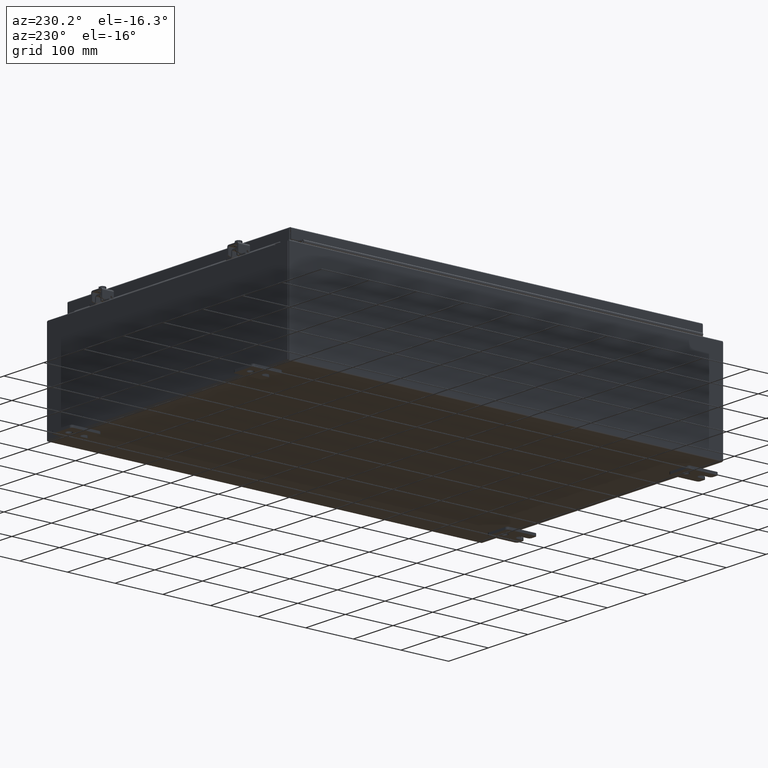
[diagram: clean part render]
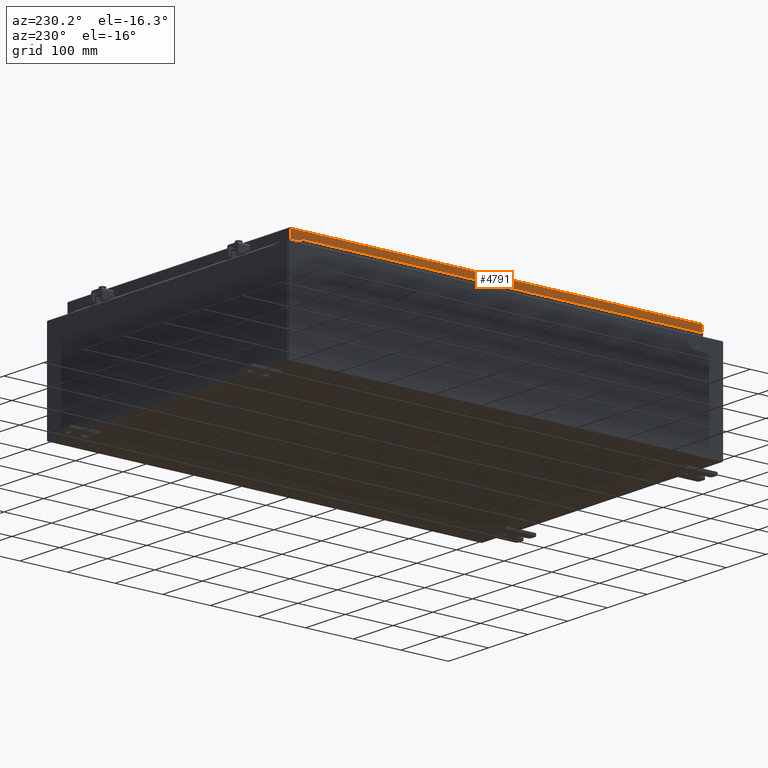
[diagram: same view with one face highlighted and labeled with its STEP entity id]
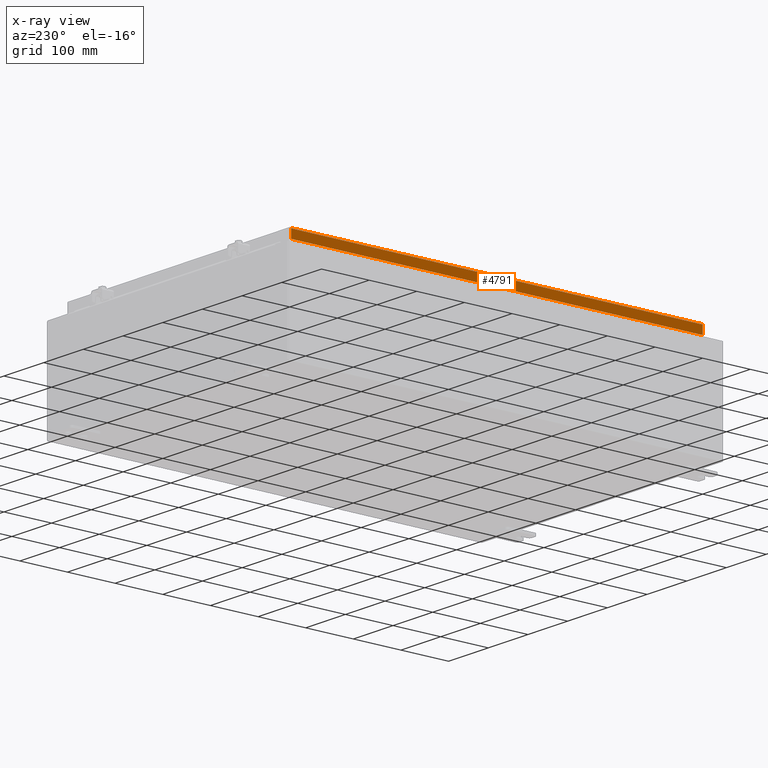
[diagram: x-ray of the same camera — body ghosted, the highlighted face saturated]
A machine part, auxiliary view. The second image highlights one B-rep face of the part: STEP entity #4791.
The next image is the same camera in x-ray: the body ghosted, the highlighted face saturated — about 0% of this face is hidden behind the body in this view.
In plain terms, the highlighted planar face has unit normal (1, 0, -0).
Its self-contained STEP definition (entity closure, byte-faithful):
#1724 = VECTOR ( 'NONE', #17745, 39.37007874015748100 ) ;
#1953 = ORIENTED_EDGE ( 'NONE', *, *, #30772, .F. ) ;
#3062 = VERTEX_POINT ( 'NONE', #27348 ) ;
#3637 = VERTEX_POINT ( 'NONE', #16598 ) ;
#4686 = ORIENTED_EDGE ( 'NONE', *, *, #41604, .T. ) ;
#4791 = ADVANCED_FACE ( 'NONE', ( #19534 ), #19556, .F. ) ;
#4880 = AXIS2_PLACEMENT_3D ( 'NONE', #32944, #7998, #7177 ) ;
#7055 = LINE ( 'NONE', #16162, #38636 ) ;
#7177 = DIRECTION ( 'NONE',  ( -3.034122441942816500E-015, 0.0000000000000000000, -1.000000000000000000 ) ) ;
#7998 = DIRECTION ( 'NONE',  ( 1.000000000000000000, 6.392530697705110700E-017, -3.034122441942816500E-015 ) ) ;
#10402 = CARTESIAN_POINT ( 'NONE',  ( -11.07800000000000500, -17.00515786437626200, -0.7949999999999996000 ) ) ;
#10616 = VERTEX_POINT ( 'NONE', #11951 ) ;
#10986 = EDGE_CURVE ( 'NONE', #3062, #31554, #35298, .T. ) ;
#11951 = CARTESIAN_POINT ( 'NONE',  ( -11.07800000000000500, 17.00515786437628000, -0.7949999999999954900 ) ) ;
#16162 = CARTESIAN_POINT ( 'NONE',  ( -11.07800000000000500, -17.09399999999999800, -0.7949999999999997100 ) ) ;
#16252 = ORIENTED_EDGE ( 'NONE', *, *, #10986, .F. ) ;
#16598 = CARTESIAN_POINT ( 'NONE',  ( -11.07800000000000500, 17.00515786437627600, -0.08770000000000223500 ) ) ;
#17745 = DIRECTION ( 'NONE',  ( -3.034122441942816500E-015, 6.982962677686265900E-015, -1.000000000000000000 ) ) ;
#17893 = CARTESIAN_POINT ( 'NONE',  ( -11.07800000000000300, -17.00515786437626500, -0.07469999999999976700 ) ) ;
#18126 = CARTESIAN_POINT ( 'NONE',  ( -11.07800000000000300, -17.09399999999999800, -0.08770000000000004200 ) ) ;
#19534 = FACE_OUTER_BOUND ( 'NONE', #39380, .T. ) ;
#19556 = PLANE ( 'NONE',  #4880 ) ;
#25864 = DIRECTION ( 'NONE',  ( -6.392530697705073700E-017, 1.000000000000000000, 1.238552822680358100E-016 ) ) ;
#27348 = CARTESIAN_POINT ( 'NONE',  ( -11.07800000000000300, -17.00515786437626200, -0.08770000000000115200 ) ) ;
#27407 = VECTOR ( 'NONE', #35265, 39.37007874015748100 ) ;
#27941 = DIRECTION ( 'NONE',  ( 6.392530697705130400E-017, -1.000000000000000000, 6.392530697705074900E-017 ) ) ;
#28970 = VECTOR ( 'NONE', #27941, 39.37007874015748100 ) ;
#30010 = LINE ( 'NONE', #18126, #28970 ) ;
#30162 = EDGE_CURVE ( 'NONE', #3637, #3062, #30010, .T. ) ;
#30772 = EDGE_CURVE ( 'NONE', #31554, #10616, #7055, .T. ) ;
#31554 = VERTEX_POINT ( 'NONE', #10402 ) ;
#31978 = CARTESIAN_POINT ( 'NONE',  ( -11.07800000000000300, 17.00515786437627600, 1.526192047629567600E-013 ) ) ;
#32944 = CARTESIAN_POINT ( 'NONE',  ( -11.07800000000000300, -7.081645506917722700E-016, 3.387282206785411200E-014 ) ) ;
#35265 = DIRECTION ( 'NONE',  ( -3.034122441942816500E-015, 6.982962677686265900E-015, -1.000000000000000000 ) ) ;
#35298 = LINE ( 'NONE', #17893, #1724 ) ;
#35841 = ORIENTED_EDGE ( 'NONE', *, *, #30162, .F. ) ;
#36065 = LINE ( 'NONE', #31978, #27407 ) ;
#38636 = VECTOR ( 'NONE', #25864, 39.37007874015748100 ) ;
#39380 = EDGE_LOOP ( 'NONE', ( #35841, #4686, #1953, #16252 ) ) ;
#41604 = EDGE_CURVE ( 'NONE', #3637, #10616, #36065, .T. ) ;